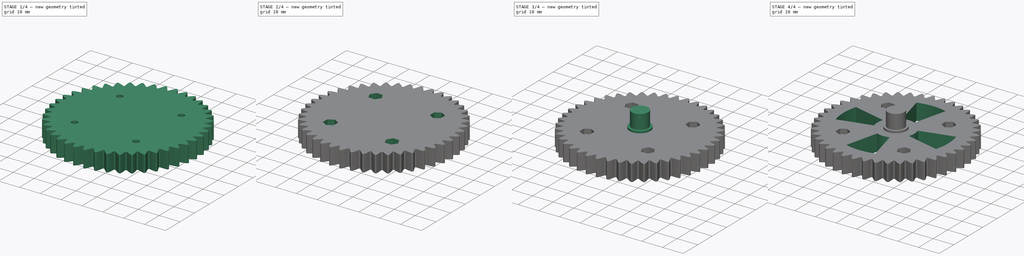
[diagram: build sequence overview — one tinted view per stage of 4, left to right]
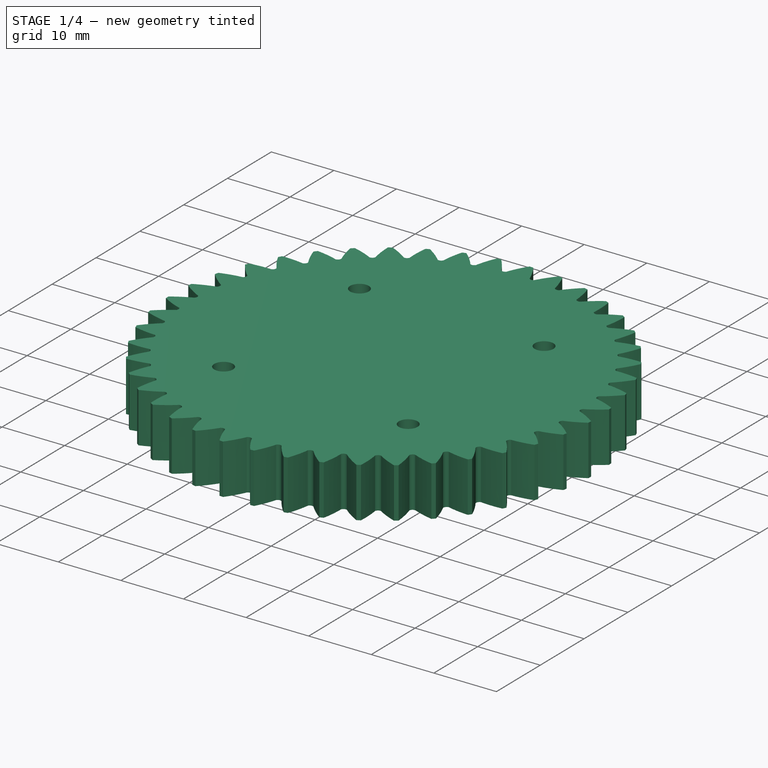
[diagram: stage 1 of 4 — iso view after this stage's code; geometry added in this stage tinted green]
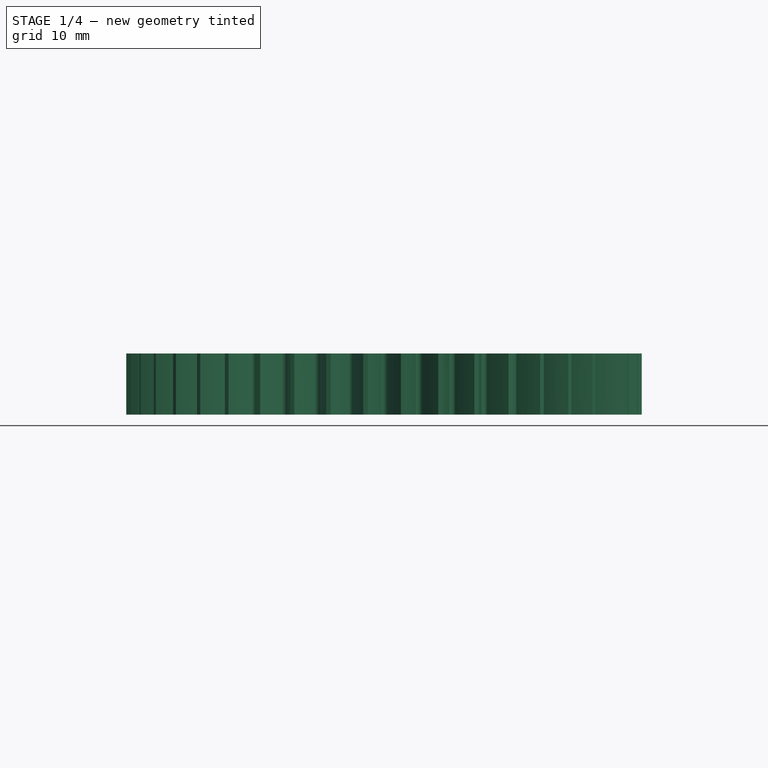
[diagram: stage 1 of 4 — front view after this stage's code; geometry added in this stage tinted green]
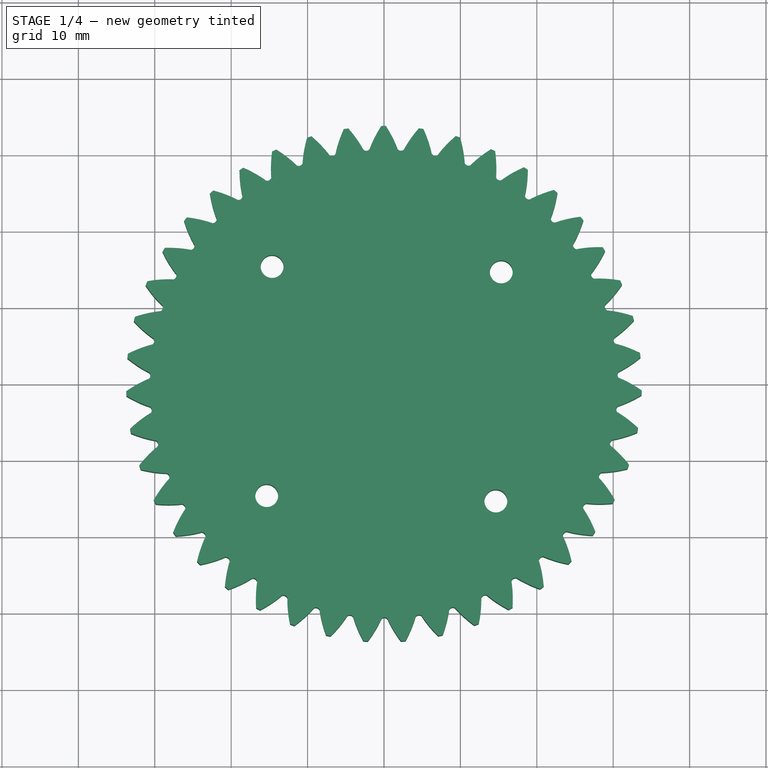
[diagram: stage 1 of 4 — top view after this stage's code; geometry added in this stage tinted green]
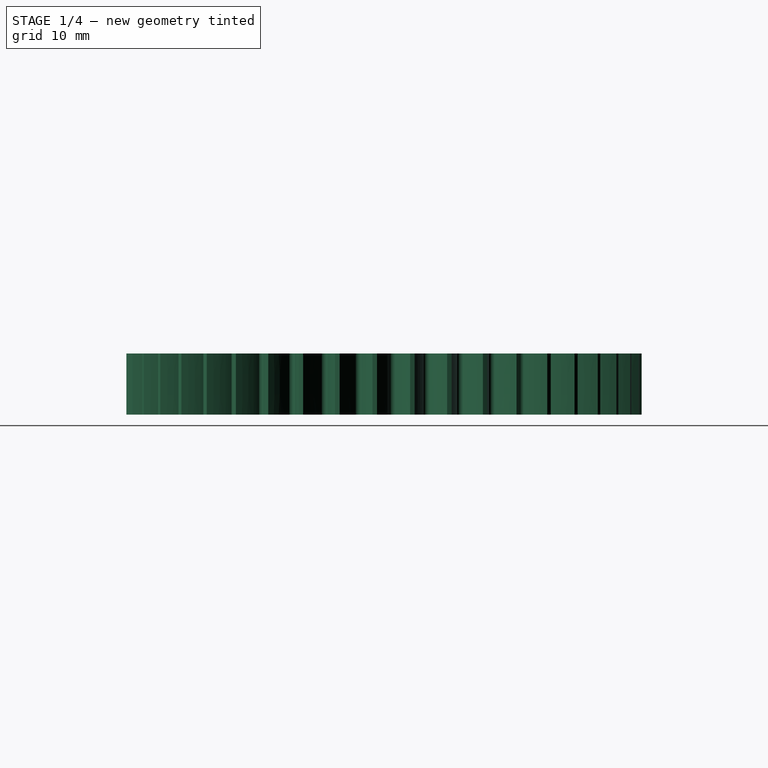
[diagram: stage 1 of 4 — right view after this stage's code; geometry added in this stage tinted green]
FCSTD DOCUMENT  (FreeCAD 0.14R3702 (Git))
Label: rueda-dentada-grande
License: CC-BY 3.0
LicenseURL: http://creativecommons.org/licenses/by/3.0/
objects: Sketcher::SketchObject×3, PartDesign::Pocket×3, Part::Cylinder×2, PartDesign::PolarPattern×2, Part::Part2DObjectPython×1, Part::Extrusion×1, Part::MultiFuse×1
note: 16 computed .brp shape members not serialized (recipe doc carries the construction recipe); baked Part::Feature solids carry a one-line shape summary decoded from their .brp

FEATURE [Part::Part2DObjectPython] InvoluteGear  label="engranaje-exterior"  # Draft 2D object (typed FeaturePython)
  Modules = 1.5
  NumberOfCurves = 0
  NumberOfTeeth = 43
  PressureAngle = 29
FEATURE [Part::Extrusion] Extrude  label="ext-engranaje-exterior"
  Base = -> InvoluteGear
  Dir = (0,0,8)
  Placement = pos=(0,0,0) rot=(0,0,-1;0.034907rad)
  Solid = true
FEATURE [Sketcher::SketchObject] Sketch  label="sk-taladros"
  Placement = pos=(0,0,0) rot=(0.999848,-0.017452,0;3.14159rad)
  Support = -> Extrude [Face259]
  sketch-geometry (5):
    g0: Circle [constr] CenterX=0 CenterY=0 CenterZ=0 NormalX=0 NormalY=0 NormalZ=1 Radius=21.2132
    g1: Circle CenterX=15.1691 CenterY=14.829 CenterZ=0 NormalX=0 NormalY=0 NormalZ=1 Radius=1.5
    g2: Circle CenterX=14.829 CenterY=-15.1691 CenterZ=0 NormalX=0 NormalY=0 NormalZ=1 Radius=1.5
    g3: Circle CenterX=-14.829 CenterY=15.1691 CenterZ=0 NormalX=0 NormalY=0 NormalZ=1 Radius=1.5
    g4: Circle CenterX=-15.1691 CenterY=-14.829 CenterZ=0 NormalX=0 NormalY=0 NormalZ=1 Radius=1.5
  constraints (13):
    c: Coincident(g0,g-1)
    c: Equal(g1,g2)
    c: Equal(g2,g4)
    c: Equal(g4,g3)
    c: PointOnObject(g1,g0)
    c: PointOnObject(g2,g0)
    c: PointOnObject(g3,g0)
    c: PointOnObject(g4,g0)
    c: Distance(g1,g2) = 30
    c: Distance(g2,g4) = 30
    c: Distance(g4,g3) = 30
    c: Distance(g3,g1) = 30
    c: Radius(g3) = 1.5
FEATURE [PartDesign::Pocket] Pocket  label="pk-taladros"
  Length = 5
  Placement = pos=(0,0,0) rot=(0,0,-1;0.034907rad)
  Sketch = -> Sketch
  Type = 1
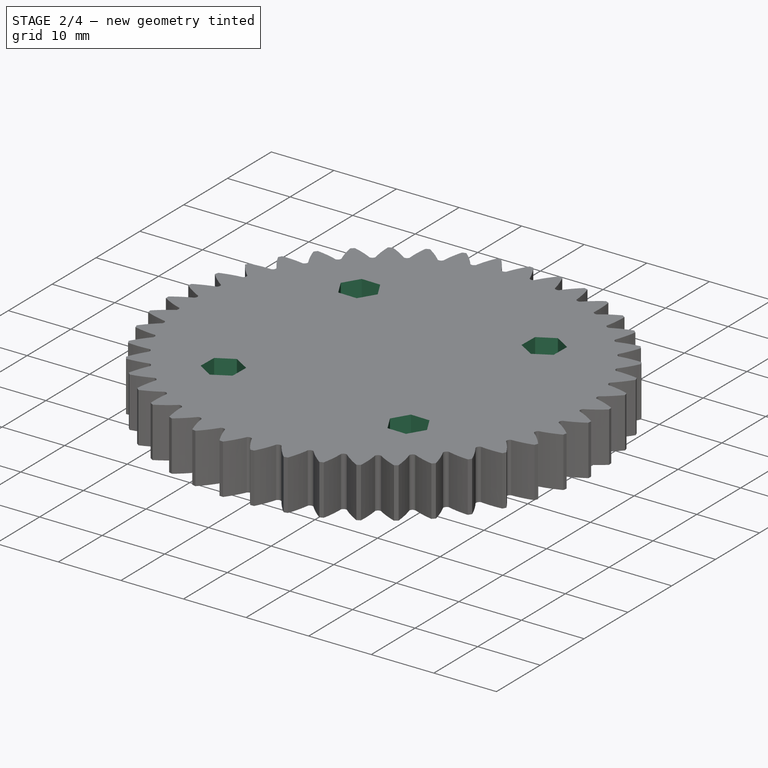
[diagram: stage 2 of 4 — iso view after this stage's code; geometry added in this stage tinted green]
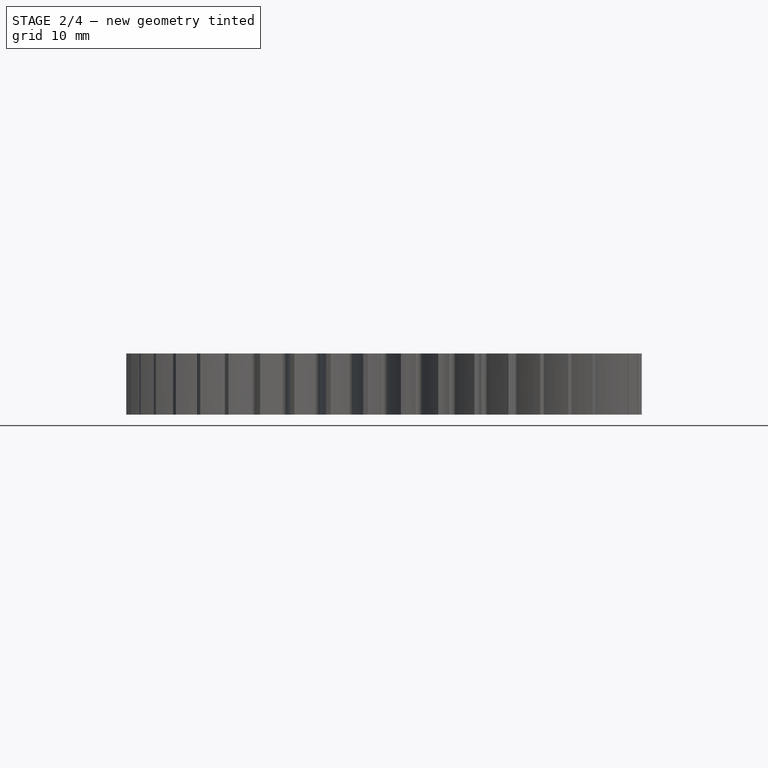
[diagram: stage 2 of 4 — front view after this stage's code; geometry added in this stage tinted green]
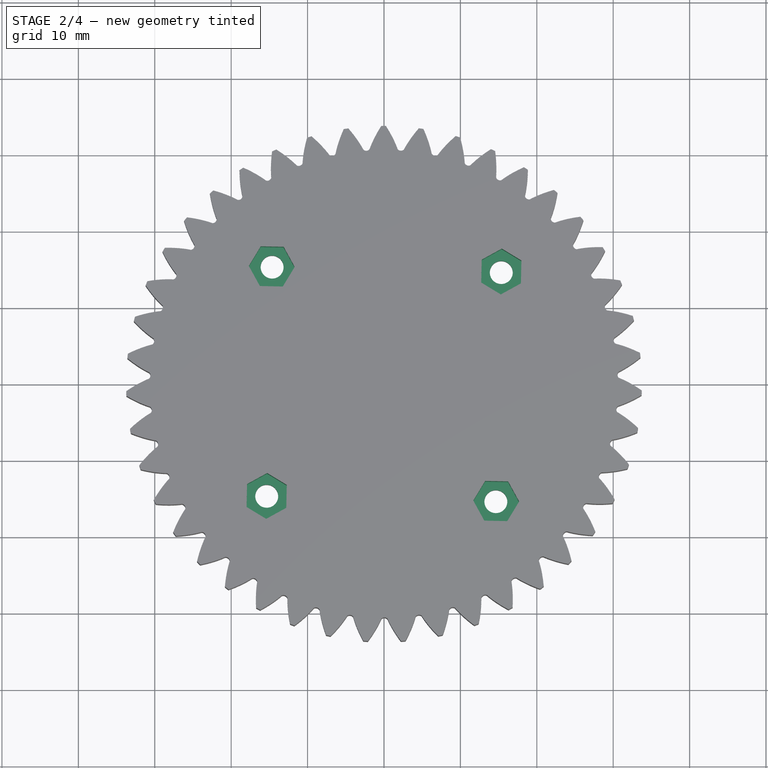
[diagram: stage 2 of 4 — top view after this stage's code; geometry added in this stage tinted green]
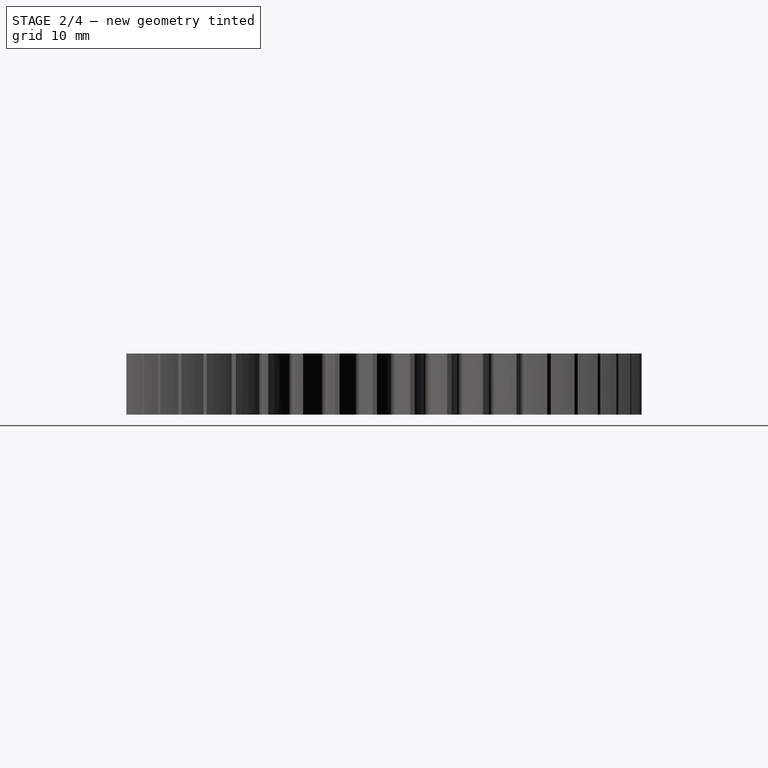
[diagram: stage 2 of 4 — right view after this stage's code; geometry added in this stage tinted green]
FEATURE [Sketcher::SketchObject] Sketch001  label="sk-tuerca"
  Placement = pos=(0,0,8) rot=(0,0,-1;0.034907rad)
  Support = -> Pocket [Face5]
  sketch-geometry (6):
    g0: LineSegment StartX=-16.7505 StartY=17.4102 StartZ=0 EndX=-13.7508 EndY=17.4512 EndZ=0
    g1: LineSegment StartX=-13.7508 StartY=17.4512 StartZ=0 EndX=-12.2154 EndY=14.8739 EndZ=0
    g2: LineSegment StartX=-12.2154 StartY=14.8739 StartZ=0 EndX=-13.6798 EndY=12.2555 EndZ=0
    g3: LineSegment StartX=-13.6798 StartY=12.2555 StartZ=0 EndX=-16.6795 EndY=12.2146 EndZ=0
    g4: LineSegment StartX=-16.6795 StartY=12.2146 StartZ=0 EndX=-18.2149 EndY=14.7919 EndZ=0
    g5: LineSegment StartX=-18.2149 StartY=14.7919 StartZ=0 EndX=-16.7505 EndY=17.4102 EndZ=0
  constraints (15):
    c: Coincident(g0,g1)
    c: Coincident(g1,g2)
    c: Coincident(g2,g3)
    c: Coincident(g3,g4)
    c: Coincident(g4,g5)
    c: Coincident(g5,g0)
    c: Equal(g5,g2)
    c: Equal(g1,g4)
    c: Angle(g1,g2) = 2.0944
    c: Angle(g2,g3) = 2.0944
    c: Angle(g3,g4) = 2.0944
    c: Angle(g4,g5) = 2.0944
    c: Equal(g4,g3)
    c: Equal(g3,g2)
    c: Distance(g2) = 3
FEATURE [PartDesign::Pocket] Pocket001  label="pk-tuerca"
  Length = 5
  Placement = pos=(0,0,0) rot=(0,0,-1;0.034907rad)
  Sketch = -> Sketch001
  Type = 0
FEATURE [PartDesign::PolarPattern] PolarPattern001
  Angle = 360
  Axis = -> Sketch001 [N_Axis]
  Occurrences = 4
  Originals = -> [Pocket001]
  Placement = pos=(0,0,0) rot=(0,0,-1;0.034907rad)
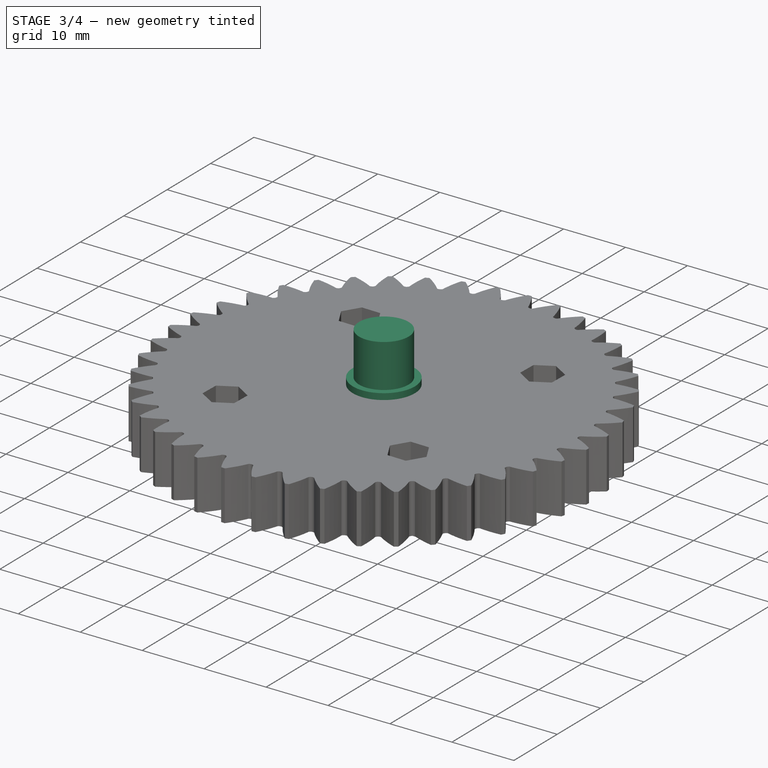
[diagram: stage 3 of 4 — iso view after this stage's code; geometry added in this stage tinted green]
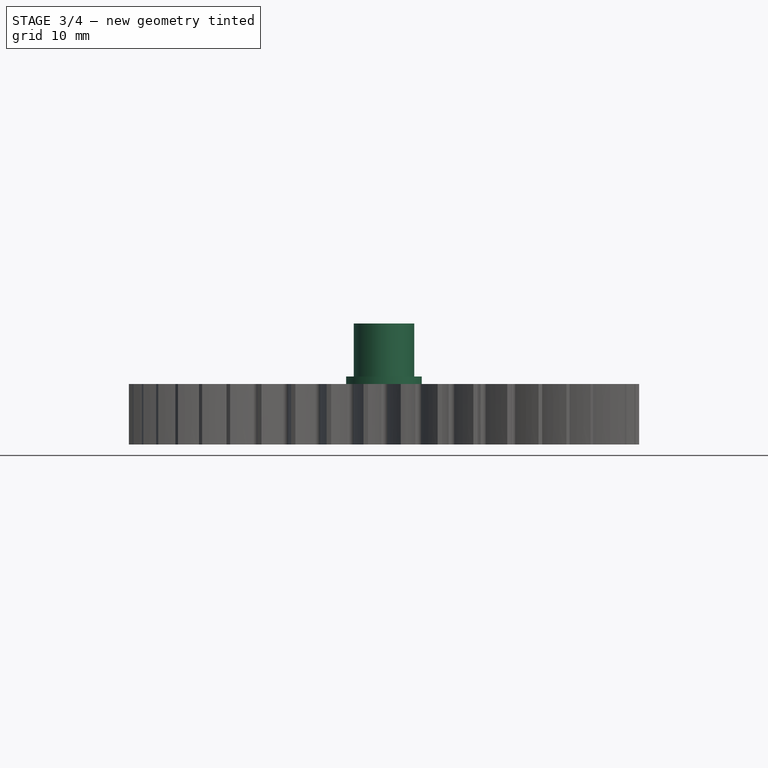
[diagram: stage 3 of 4 — front view after this stage's code; geometry added in this stage tinted green]
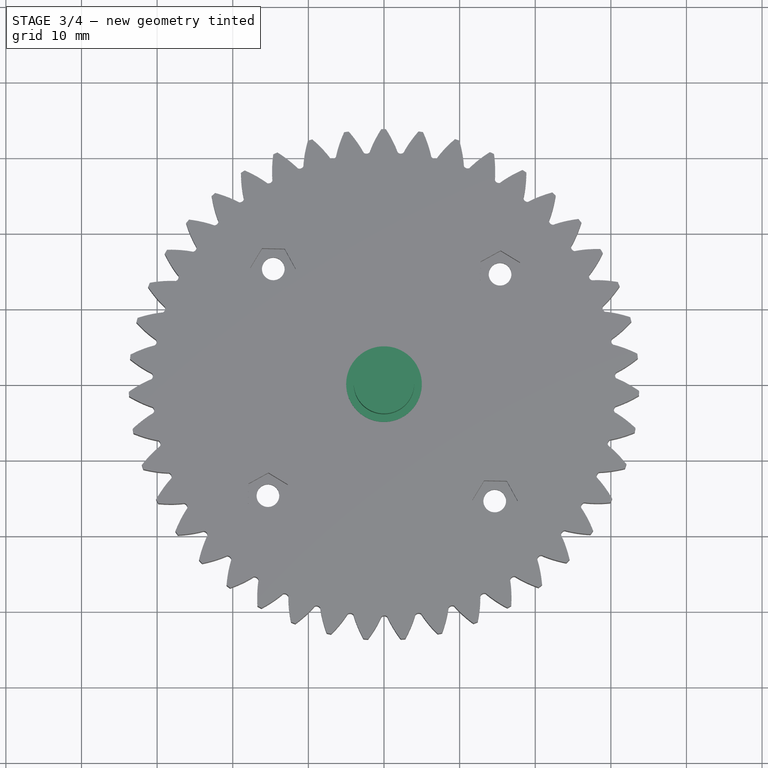
[diagram: stage 3 of 4 — top view after this stage's code; geometry added in this stage tinted green]
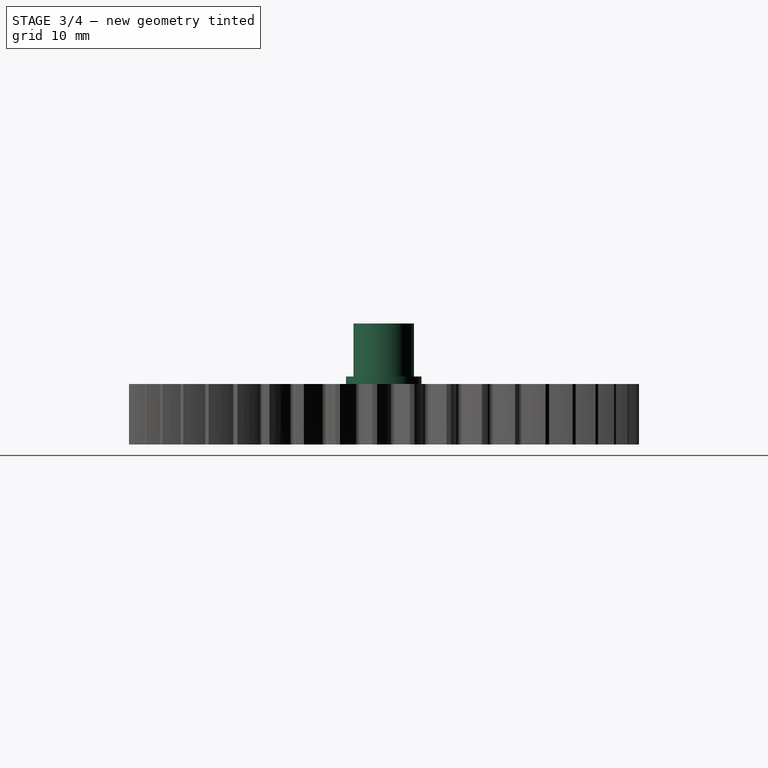
[diagram: stage 3 of 4 — right view after this stage's code; geometry added in this stage tinted green]
FEATURE [Part::Cylinder] Cylinder  label="separacion-rodamiento"
  Angle = 360
  Height = 16
  Radius = 4
FEATURE [Part::Cylinder] Cylinder001  label="hueco-rodamiento"
  Angle = 360
  Height = 9
  Radius = 5
FEATURE [Part::MultiFuse] Fusion
  Shapes = -> [Cylinder001,Cylinder,PolarPattern001]
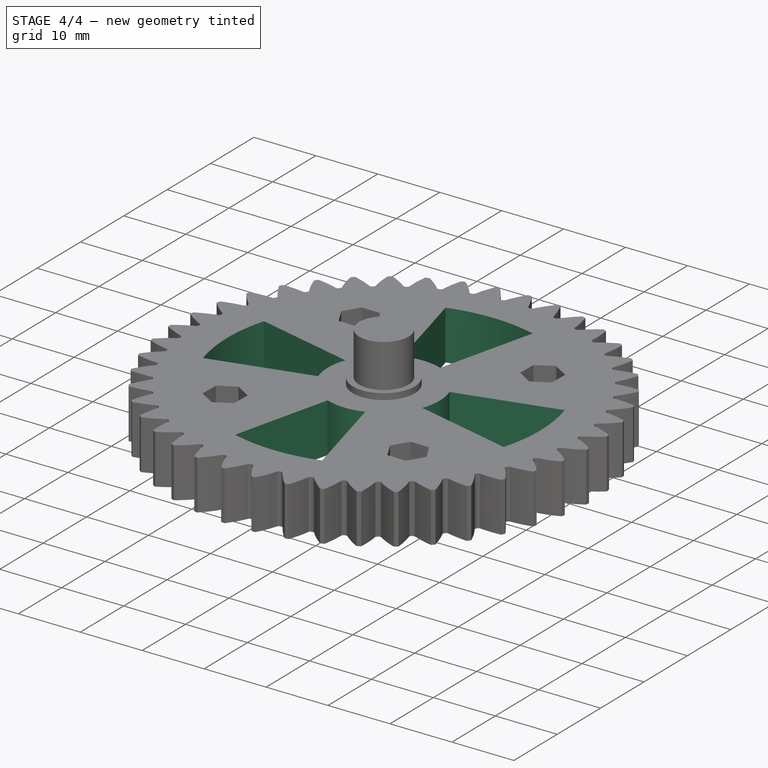
[diagram: stage 4 of 4 — iso view after this stage's code; geometry added in this stage tinted green]
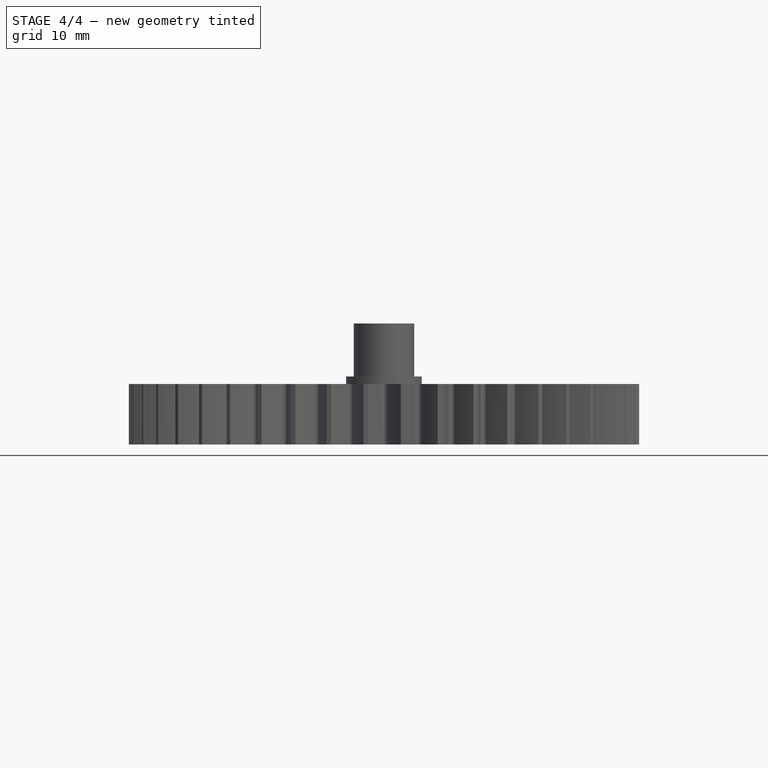
[diagram: stage 4 of 4 — front view after this stage's code; geometry added in this stage tinted green]
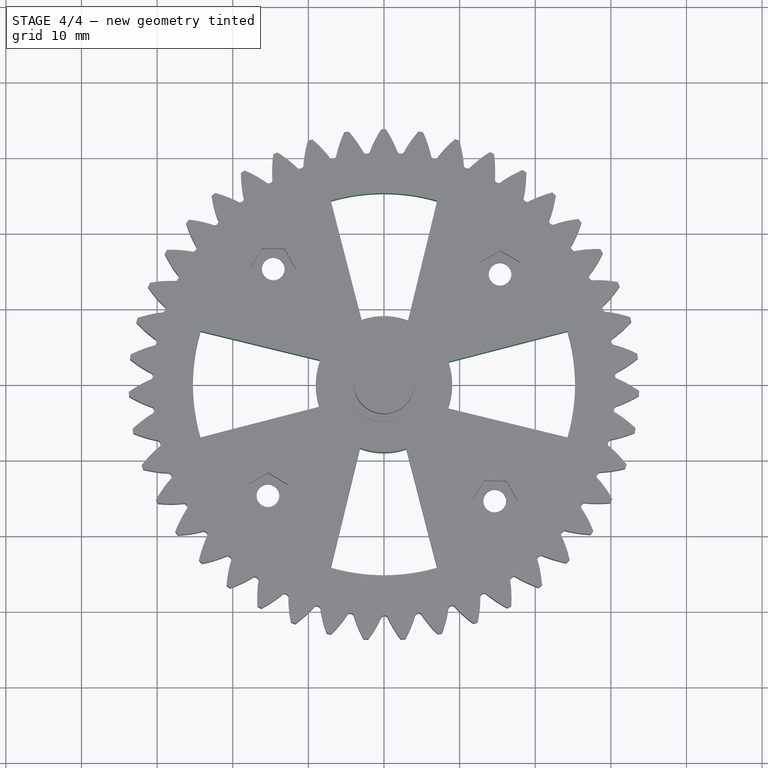
[diagram: stage 4 of 4 — top view after this stage's code; geometry added in this stage tinted green]
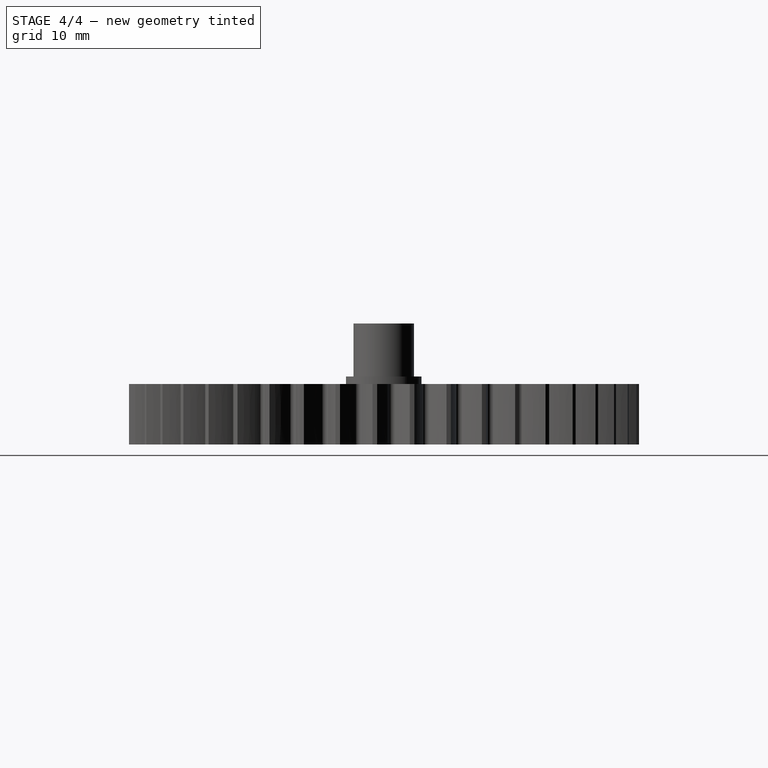
[diagram: stage 4 of 4 — right view after this stage's code; geometry added in this stage tinted green]
FEATURE [Sketcher::SketchObject] Sketch002  label="sk-vaciado"
  Placement = pos=(0,0,8) rot=(0,0,1;0rad)
  Support = -> Fusion [Face4]
  sketch-geometry (4):
    g0: ArcOfCircle CenterX=0 CenterY=0 CenterZ=0 NormalX=0 NormalY=0 NormalZ=1 Radius=25.2634 StartAngle=1.28887 EndAngle=1.85273
    g1: ArcOfCircle CenterX=0 CenterY=0 CenterZ=0 NormalX=0 NormalY=0 NormalZ=1 Radius=9.01842 StartAngle=1.2106 EndAngle=1.90493
    g2: LineSegment StartX=-7.02855 StartY=24.266 StartZ=0 EndX=-2.95758 EndY=8.51966 EndZ=0
    g3: LineSegment StartX=7.02855 StartY=24.266 StartZ=0 EndX=3.17863 EndY=8.43967 EndZ=0
  constraints (7):
    c: Coincident(g0,g1)
    c: Coincident(g0,g-1)
    c: Coincident(g1,g3)
    c: Coincident(g1,g2)
    c: Coincident(g2,g0)
    c: Coincident(g0,g3)
    c: Symmetric(g0,g0,g-2)
FEATURE [PartDesign::Pocket] Pocket002  label="pk-vaciado"
  Length = 5
  Sketch = -> Sketch002
  Type = 1
FEATURE [PartDesign::PolarPattern] PolarPattern002  label="rueda-dentada-grande"
  Angle = 360
  Axis = -> Sketch002 [N_Axis]
  Occurrences = 4
  Originals = -> [Pocket002]
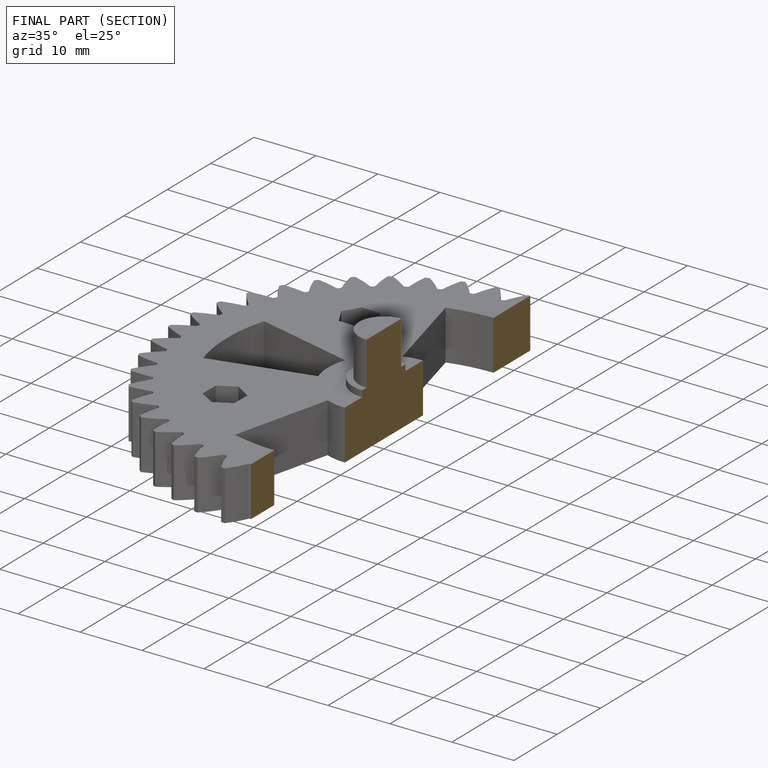
[diagram: finished part — half-section view (interior)]
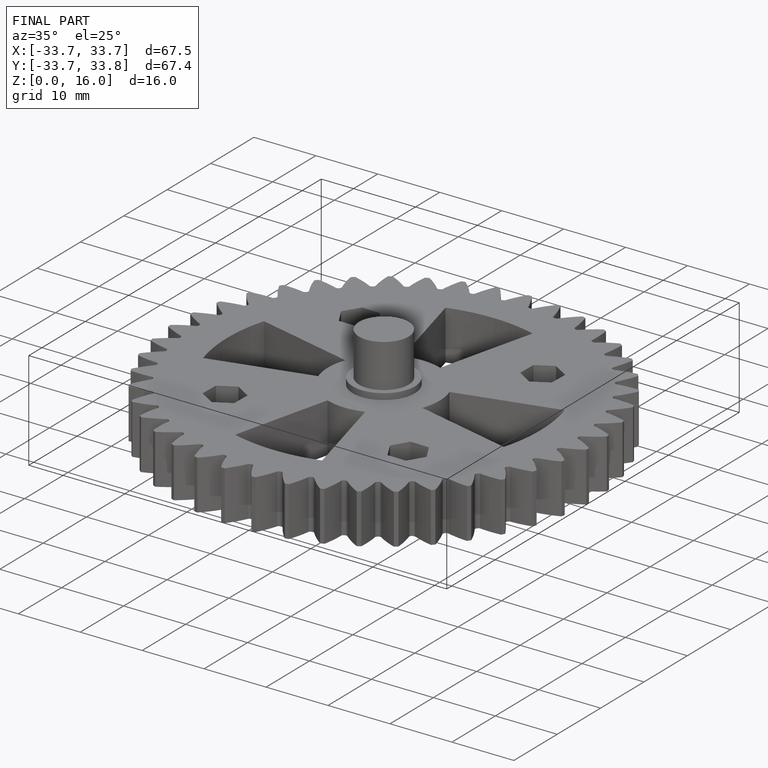
[diagram: finished part — iso view with bounding-box wireframe]
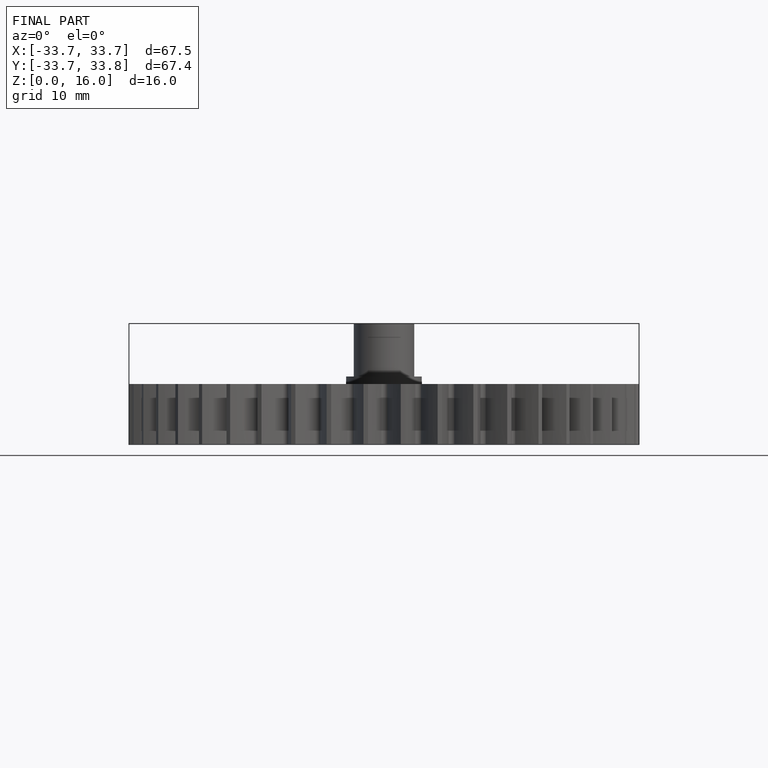
[diagram: finished part — front view with bounding-box wireframe]
